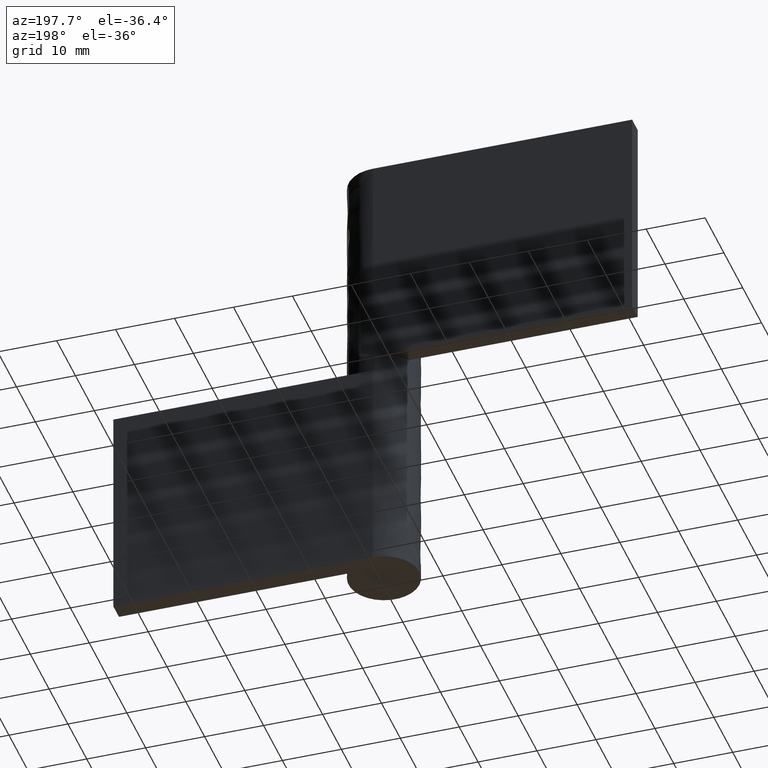
[diagram: clean part render]
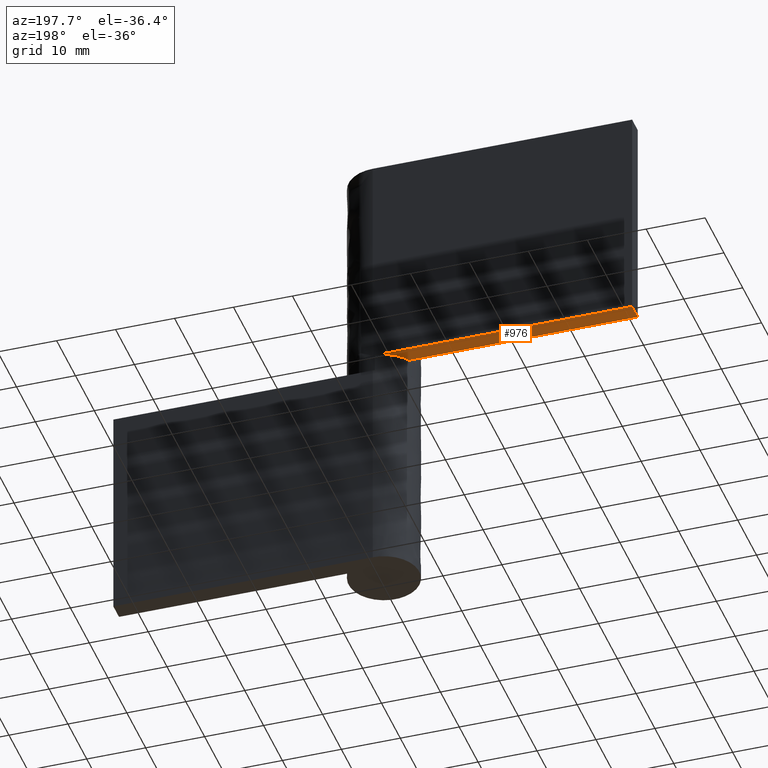
[diagram: same view with one face highlighted and labeled with its STEP entity id]
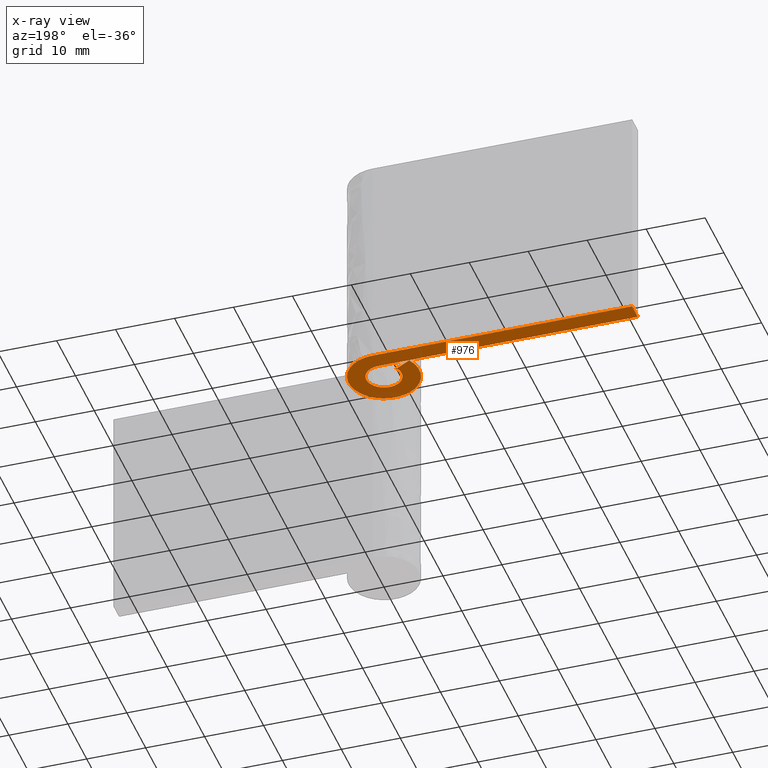
[diagram: x-ray of the same camera — body ghosted, the highlighted face saturated]
A machine part, auxiliary view. The second image highlights one B-rep face of the part: STEP entity #976.
The next image is the same camera in x-ray: the body ghosted, the highlighted face saturated — about 4% of this face is hidden behind the body in this view.
In plain terms, the highlighted face is a freeform B-spline surface patch.
Its self-contained STEP definition (entity closure, byte-faithful):
#899=CARTESIAN_POINT('',(-46.497498656088311,6.599395005080945,40.500000000000000));
#900=CARTESIAN_POINT('',(8.497475032186387,6.599395005080945,40.500000000000000));
#901=CARTESIAN_POINT('',(-46.497498656088311,-6.599295794192201,40.500000000000000));
#902=CARTESIAN_POINT('',(8.497475032186387,-6.599295794192202,40.500000000000000));
#903=B_SPLINE_SURFACE_WITH_KNOTS('',1,1,((#899,#901),(#900,#902)),.UNSPECIFIED.,.F.,.F.,.U.,(2,2),(2,2),(0.0,54.994973688274698),(0.0,13.198690799273150),.UNSPECIFIED.);
#904=CARTESIAN_POINT('',(-44.0,3.000000000000055,40.500000000000000));
#905=VERTEX_POINT('',#904);
#906=CARTESIAN_POINT('',(1.836910E-016,3.000000000000055,40.500000000000000));
#907=VERTEX_POINT('',#906);
#908=CARTESIAN_POINT('',(-44.0,3.000000000000055,40.500000000000000));
#909=CARTESIAN_POINT('',(1.836910E-016,3.000000000000055,40.500000000000000));
#910=QUASI_UNIFORM_CURVE('',1,(#908,#909),.UNSPECIFIED.,.F.,.U.);
#911=EDGE_CURVE('',#905,#907,#910,.T.);
#912=ORIENTED_EDGE('',*,*,#911,.F.);
#913=CARTESIAN_POINT('',(-44.0,6.0,40.500000000000000));
#914=VERTEX_POINT('',#913);
#915=CARTESIAN_POINT('',(-44.0,6.0,40.500000000000000));
#916=CARTESIAN_POINT('',(-44.0,3.000000000000055,40.500000000000000));
#917=QUASI_UNIFORM_CURVE('',1,(#915,#916),.UNSPECIFIED.,.F.,.U.);
#918=EDGE_CURVE('',#914,#905,#917,.T.);
#919=ORIENTED_EDGE('',*,*,#918,.F.);
#920=CARTESIAN_POINT('',(3.673819E-016,6.0,40.500000000000000));
#921=VERTEX_POINT('',#920);
#922=CARTESIAN_POINT('',(3.673819E-016,6.0,40.500000000000000));
#923=CARTESIAN_POINT('',(-44.0,6.0,40.500000000000000));
#924=QUASI_UNIFORM_CURVE('',1,(#922,#923),.UNSPECIFIED.,.F.,.U.);
#925=EDGE_CURVE('',#921,#914,#924,.T.);
#926=ORIENTED_EDGE('',*,*,#925,.F.);
#927=CARTESIAN_POINT('',(-5.224700948379691,2.950000000000055,40.500000000000000));
#928=VERTEX_POINT('',#927);
#929=CARTESIAN_POINT('',(-5.224700948379692,2.950000000000060,40.500000000000000));
#930=CARTESIAN_POINT('',(-7.482698713737891,-1.049106124103661,40.499999999999993));
#931=CARTESIAN_POINT('',(-4.211996565981467,-4.273065050775652,40.500000000000000));
#932=CARTESIAN_POINT('',(-0.941294418225046,-7.497023977447642,40.499999999999993));
#933=CARTESIAN_POINT('',(3.024896692450802,-5.181698563212665,40.500000000000000));
#934=CARTESIAN_POINT('',(6.991087803126656,-2.866373148977686,40.499999999999993));
#935=CARTESIAN_POINT('',(5.791812815486874,1.566813425511160,40.500000000000000));
#936=CARTESIAN_POINT('',(4.592537827847093,6.0,40.499999999999993));
#937=CARTESIAN_POINT('',(0.0,6.0,40.500000000000000));
#945=(BOUNDED_CURVE()B_SPLINE_CURVE(2,(#929,#930,#931,#932,#933,#934,#935,#936,#937),.UNSPECIFIED.,.F.,.U.)B_SPLINE_CURVE_WITH_KNOTS((3,2,2,2,3),(0.0,0.250000000000000,0.500000000000000,0.750000000000000,1.0),.UNSPECIFIED.)CURVE()GEOMETRIC_REPRESENTATION_ITEM()RATIONAL_B_SPLINE_CURVE((1.0,0.794082983987986,1.0,0.794082983987986,1.0,0.794082983987986,1.0,0.794082983987986,1.0))REPRESENTATION_ITEM(''));
#946=EDGE_CURVE('',#928,#921,#945,.T.);
#947=ORIENTED_EDGE('',*,*,#946,.F.);
#948=CARTESIAN_POINT('',(-2.612350474189895,1.475000000000056,40.500000000000000));
#949=VERTEX_POINT('',#948);
#950=CARTESIAN_POINT('',(-2.612350474189895,1.475000000000056,40.500000000000000));
#951=CARTESIAN_POINT('',(-5.224700948379691,2.950000000000055,40.500000000000000));
#952=QUASI_UNIFORM_CURVE('',1,(#950,#951),.UNSPECIFIED.,.F.,.U.);
#953=EDGE_CURVE('',#949,#928,#952,.T.);
#954=ORIENTED_EDGE('',*,*,#953,.F.);
#955=CARTESIAN_POINT('',(-2.612350474189894,1.475000000000057,40.500000000000000));
#956=CARTESIAN_POINT('',(-3.741349356869014,-0.524553062051840,40.500000000000000));
#957=CARTESIAN_POINT('',(-2.105998282990772,-2.136532525387866,40.500000000000000));
#958=CARTESIAN_POINT('',(-0.470647209112531,-3.748511988723890,40.500000000000000));
#959=CARTESIAN_POINT('',(1.512448346225429,-2.590849281606380,40.500000000000000));
#960=CARTESIAN_POINT('',(3.495543901563392,-1.433186574488869,40.500000000000000));
#961=CARTESIAN_POINT('',(2.895906407743490,0.783406712755595,40.500000000000000));
#962=CARTESIAN_POINT('',(2.296268913923588,3.000000000000056,40.500000000000000));
#963=CARTESIAN_POINT('',(0.0,3.000000000000055,40.500000000000000));
#971=(BOUNDED_CURVE()B_SPLINE_CURVE(2,(#955,#956,#957,#958,#959,#960,#961,#962,#963),.UNSPECIFIED.,.F.,.U.)B_SPLINE_CURVE_WITH_KNOTS((3,2,2,2,3),(0.0,0.250000000000000,0.500000000000000,0.750000000000000,1.0),.UNSPECIFIED.)CURVE()GEOMETRIC_REPRESENTATION_ITEM()RATIONAL_B_SPLINE_CURVE((1.0,0.794082983987985,1.0,0.794082983987985,1.0,0.794082983987985,1.0,0.794082983987985,1.0))REPRESENTATION_ITEM(''));
#972=EDGE_CURVE('',#949,#907,#971,.T.);
#973=ORIENTED_EDGE('',*,*,#972,.T.);
#974=EDGE_LOOP('',(#912,#919,#926,#947,#954,#973));
#975=FACE_OUTER_BOUND('',#974,.T.);
#976=ADVANCED_FACE('',(#975),#903,.T.);